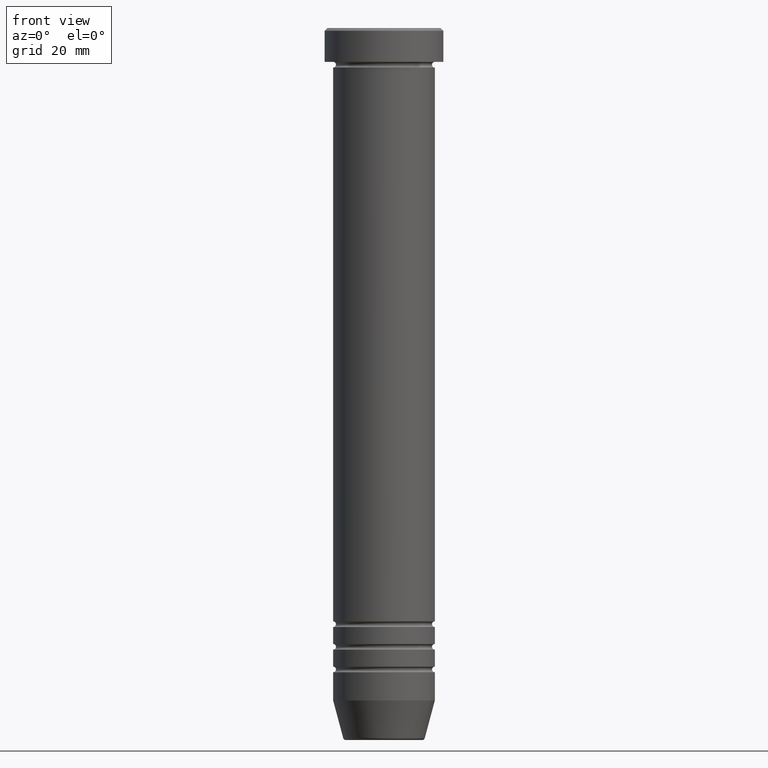
[diagram: clean part render]
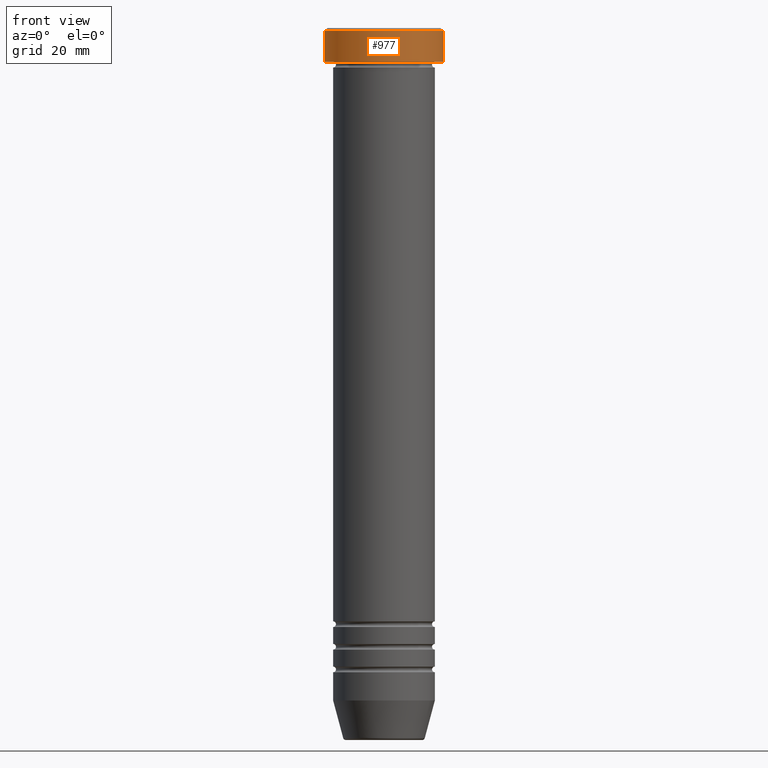
[diagram: same view with one face highlighted and labeled with its STEP entity id]
A machine part, front view. The second image highlights one B-rep face of the part: STEP entity #977.
In plain terms, the highlighted cylindrical surface (partial cylindrical patch) has radius 10.5 mm, axis along (-0, -0, 1).
Its self-contained STEP definition (entity closure, byte-faithful):
#18 = AXIS2_PLACEMENT_3D ( 'NONE', #880, #350, #780 ) ;
#43 = LINE ( 'NONE', #742, #1015 ) ;
#49 = DIRECTION ( 'NONE',  ( -0.000000000000000000, -0.000000000000000000, 1.000000000000000000 ) ) ;
#89 = DIRECTION ( 'NONE',  ( 1.000000000000000000, 0.000000000000000000, 0.000000000000000000 ) ) ;
#148 = ORIENTED_EDGE ( 'NONE', *, *, #635, .T. ) ;
#239 = LINE ( 'NONE', #1123, #437 ) ;
#248 = ORIENTED_EDGE ( 'NONE', *, *, #865, .T. ) ;
#253 = VERTEX_POINT ( 'NONE', #261 ) ;
#261 = CARTESIAN_POINT ( 'NONE',  ( 10.50000000000000000, 0.000000000000000000, -6.000000000000000000 ) ) ;
#350 = DIRECTION ( 'NONE',  ( -0.000000000000000000, -0.000000000000000000, 1.000000000000000000 ) ) ;
#437 = VECTOR ( 'NONE', #49, 1000.000000000000000 ) ;
#440 = FACE_OUTER_BOUND ( 'NONE', #567, .T. ) ;
#559 = ORIENTED_EDGE ( 'NONE', *, *, #1037, .T. ) ;
#561 = EDGE_CURVE ( 'NONE', #1105, #692, #43, .T. ) ;
#567 = EDGE_LOOP ( 'NONE', ( #1086, #248, #148, #559 ) ) ;
#599 = DIRECTION ( 'NONE',  ( 0.000000000000000000, 0.000000000000000000, -1.000000000000000000 ) ) ;
#635 = EDGE_CURVE ( 'NONE', #253, #1125, #239, .T. ) ;
#643 = DIRECTION ( 'NONE',  ( -0.000000000000000000, -0.000000000000000000, 1.000000000000000000 ) ) ;
#657 = AXIS2_PLACEMENT_3D ( 'NONE', #754, #1126, #951 ) ;
#692 = VERTEX_POINT ( 'NONE', #747 ) ;
#711 = CARTESIAN_POINT ( 'NONE',  ( -10.50000000000000000, 1.285879139104720831E-15, -6.000000000000000000 ) ) ;
#715 = CARTESIAN_POINT ( 'NONE',  ( 10.50000000000000000, 0.000000000000000000, -0.5000000000000056621 ) ) ;
#742 = CARTESIAN_POINT ( 'NONE',  ( -10.50000000000000000, 1.285879139104720831E-15, 0.000000000000000000 ) ) ;
#747 = CARTESIAN_POINT ( 'NONE',  ( -10.50000000000000000, 1.285879139104720831E-15, -0.5000000000000056621 ) ) ;
#754 = CARTESIAN_POINT ( 'NONE',  ( 0.000000000000000000, 0.000000000000000000, -6.000000000000000000 ) ) ;
#780 = DIRECTION ( 'NONE',  ( 1.000000000000000000, 0.000000000000000000, 0.000000000000000000 ) ) ;
#806 = CIRCLE ( 'NONE', #851, 10.50000000000000000 ) ;
#851 = AXIS2_PLACEMENT_3D ( 'NONE', #1067, #599, #89 ) ;
#865 = EDGE_CURVE ( 'NONE', #1105, #253, #888, .T. ) ;
#880 = CARTESIAN_POINT ( 'NONE',  ( 0.000000000000000000, 0.000000000000000000, 0.000000000000000000 ) ) ;
#888 = CIRCLE ( 'NONE', #657, 10.50000000000000000 ) ;
#951 = DIRECTION ( 'NONE',  ( 1.000000000000000000, 0.000000000000000000, 0.000000000000000000 ) ) ;
#977 = ADVANCED_FACE ( 'NONE', ( #440 ), #1139, .T. ) ;
#1015 = VECTOR ( 'NONE', #643, 1000.000000000000000 ) ;
#1037 = EDGE_CURVE ( 'NONE', #1125, #692, #806, .T. ) ;
#1067 = CARTESIAN_POINT ( 'NONE',  ( 0.000000000000000000, 0.000000000000000000, -0.5000000000000056621 ) ) ;
#1086 = ORIENTED_EDGE ( 'NONE', *, *, #561, .F. ) ;
#1105 = VERTEX_POINT ( 'NONE', #711 ) ;
#1123 = CARTESIAN_POINT ( 'NONE',  ( 10.50000000000000000, 0.000000000000000000, 0.000000000000000000 ) ) ;
#1125 = VERTEX_POINT ( 'NONE', #715 ) ;
#1126 = DIRECTION ( 'NONE',  ( -0.000000000000000000, -0.000000000000000000, 1.000000000000000000 ) ) ;
#1139 = CYLINDRICAL_SURFACE ( 'NONE', #18, 10.50000000000000000 ) ;